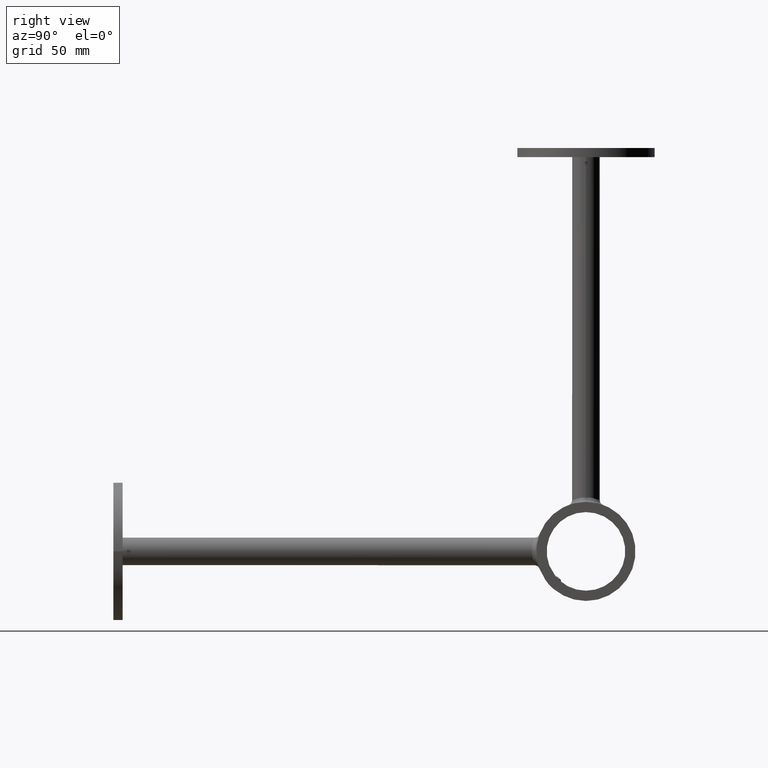
[diagram: clean part render]
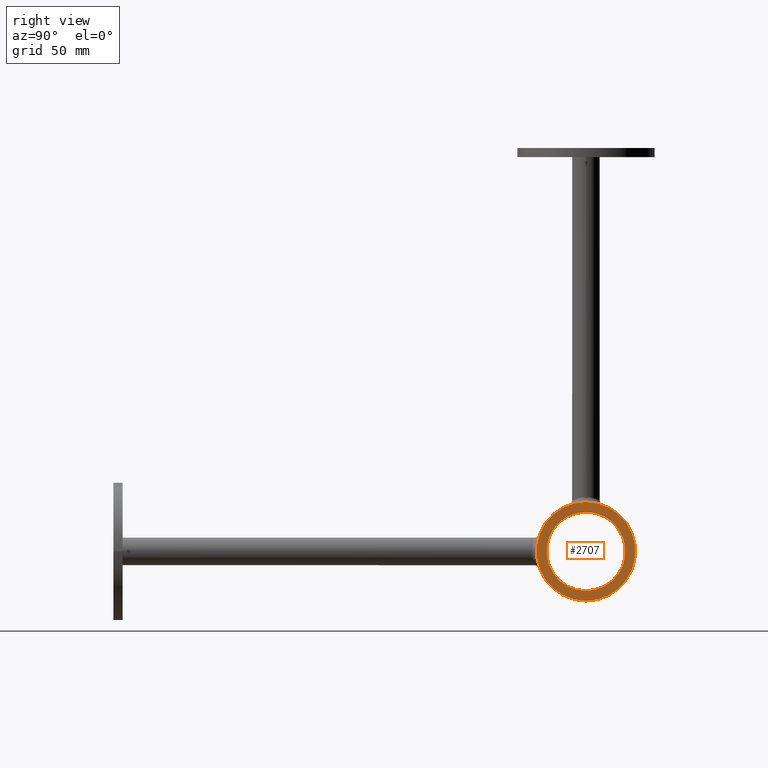
[diagram: same view with one face highlighted and labeled with its STEP entity id]
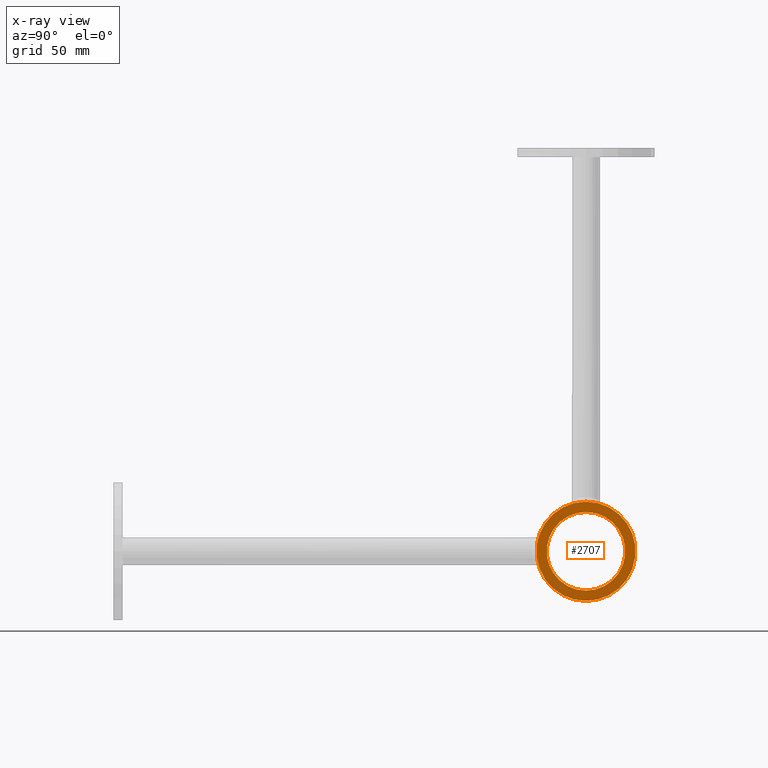
[diagram: x-ray of the same camera — body ghosted, the highlighted face saturated]
A machine part, right view. The second image highlights one B-rep face of the part: STEP entity #2707.
The next image is the same camera in x-ray: the body ghosted, the highlighted face saturated — about 0% of this face is hidden behind the body in this view.
In plain terms, the highlighted planar face has unit normal (1, 0, 0).
Its self-contained STEP definition (entity closure, byte-faithful):
#4 = EDGE_CURVE ( 'NONE', #6850, #6850, #847, .T. ) ;
#847 = CIRCLE ( 'NONE', #12400, 17.05000000000000071 ) ;
#1015 = EDGE_CURVE ( 'NONE', #9884, #9884, #1314, .T. ) ;
#1049 = CARTESIAN_POINT ( 'NONE',  ( 0.000000000000000000, 205.0000000000000000, 13.75000000000000000 ) ) ;
#1126 = AXIS2_PLACEMENT_3D ( 'NONE', #9343, #5570, #12331 ) ;
#1303 = DIRECTION ( 'NONE',  ( 0.000000000000000000, 0.000000000000000000, 1.000000000000000000 ) ) ;
#1314 = CIRCLE ( 'NONE', #5405, 21.49999999999999645 ) ;
#1760 = FACE_OUTER_BOUND ( 'NONE', #3144, .T. ) ;
#1835 = ORIENTED_EDGE ( 'NONE', *, *, #1015, .T. ) ;
#2380 = FACE_BOUND ( 'NONE', #5136, .T. ) ;
#2707 = ADVANCED_FACE ( 'NONE', ( #2380, #1760 ), #7375, .T. ) ;
#2737 = CARTESIAN_POINT ( 'NONE',  ( 21.49999999999999645, 205.0000000000000000, 13.75000000000000000 ) ) ;
#3144 = EDGE_LOOP ( 'NONE', ( #1835 ) ) ;
#5136 = EDGE_LOOP ( 'NONE', ( #10373 ) ) ;
#5405 = AXIS2_PLACEMENT_3D ( 'NONE', #11085, #1303, #8158 ) ;
#5570 = DIRECTION ( 'NONE',  ( 0.000000000000000000, 0.000000000000000000, 1.000000000000000000 ) ) ;
#6648 = DIRECTION ( 'NONE',  ( -1.000000000000000000, 0.000000000000000000, 0.000000000000000000 ) ) ;
#6850 = VERTEX_POINT ( 'NONE', #11422 ) ;
#7375 = PLANE ( 'NONE',  #1126 ) ;
#7922 = DIRECTION ( 'NONE',  ( 0.000000000000000000, 0.000000000000000000, -1.000000000000000000 ) ) ;
#8158 = DIRECTION ( 'NONE',  ( 1.000000000000000000, 0.000000000000000000, 0.000000000000000000 ) ) ;
#9343 = CARTESIAN_POINT ( 'NONE',  ( 0.000000000000000000, 205.0000000000000000, 13.75000000000000000 ) ) ;
#9884 = VERTEX_POINT ( 'NONE', #2737 ) ;
#10373 = ORIENTED_EDGE ( 'NONE', *, *, #4, .T. ) ;
#11085 = CARTESIAN_POINT ( 'NONE',  ( 0.000000000000000000, 205.0000000000000000, 13.75000000000000000 ) ) ;
#11422 = CARTESIAN_POINT ( 'NONE',  ( -17.05000000000000071, 205.0000000000000000, 13.75000000000000000 ) ) ;
#12331 = DIRECTION ( 'NONE',  ( 1.000000000000000000, 0.000000000000000000, -0.000000000000000000 ) ) ;
#12400 = AXIS2_PLACEMENT_3D ( 'NONE', #1049, #7922, #6648 ) ;